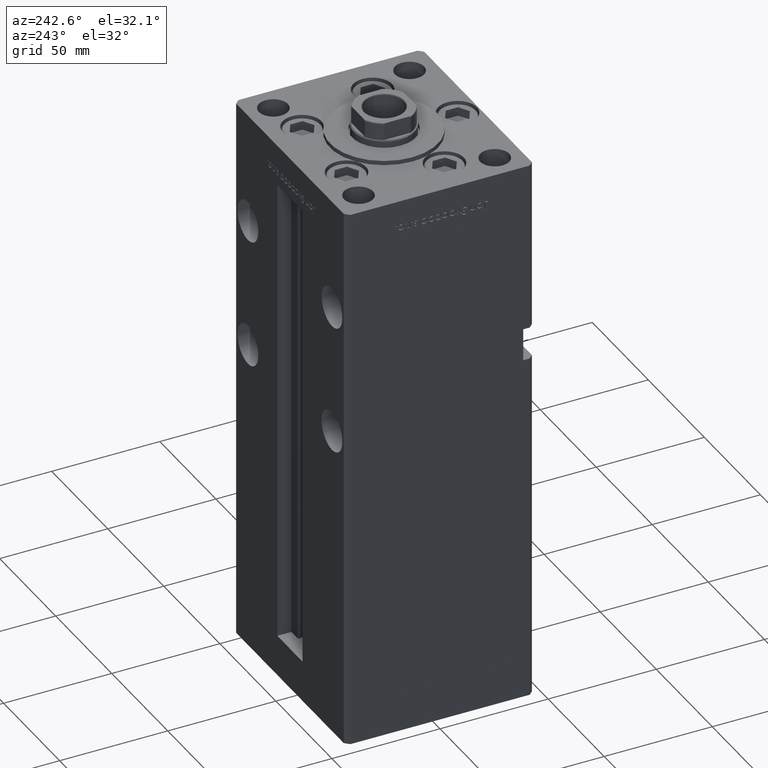
[diagram: clean part render]
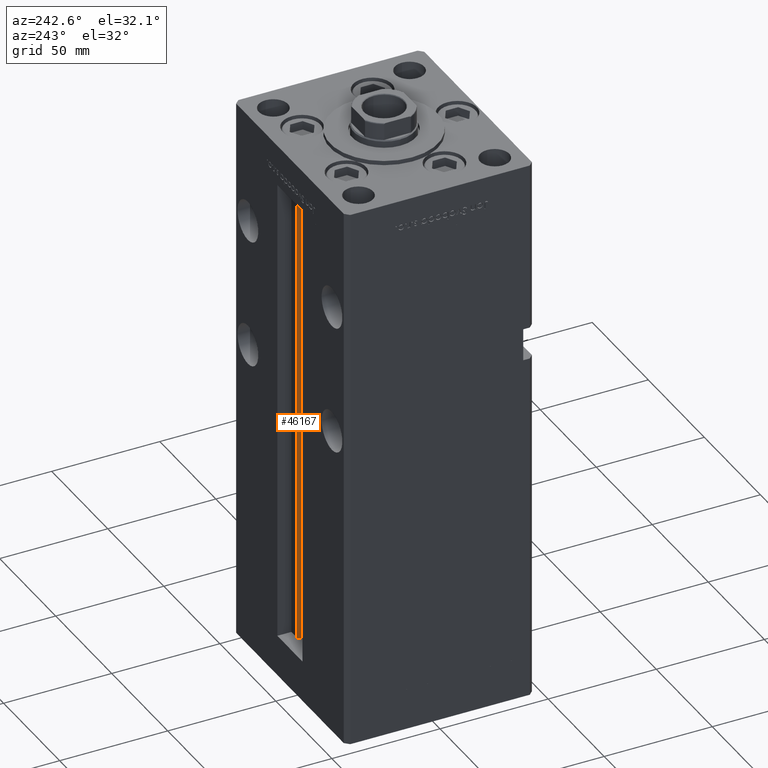
[diagram: same view with one face highlighted and labeled with its STEP entity id]
A machine part, auxiliary view. The second image highlights one B-rep face of the part: STEP entity #46167.
In plain terms, the highlighted cylindrical surface (edge-blend (fillet) strip) has radius 0.9333 mm, axis along (0, 0, 1).
Its self-contained STEP definition (entity closure, byte-faithful):
#406 = CARTESIAN_POINT ( 'NONE',  ( 6.183333333333996151, 36.06666666666599497, 218.5000000000000000 ) ) ;
#5248 = ORIENTED_EDGE ( 'NONE', *, *, #34965, .T. ) ;
#5437 = DIRECTION ( 'NONE',  ( -0.000000000000000000, -0.000000000000000000, 1.000000000000000000 ) ) ;
#10137 = ORIENTED_EDGE ( 'NONE', *, *, #10292, .T. ) ;
#10292 = EDGE_CURVE ( 'NONE', #39061, #16890, #41466, .T. ) ;
#11598 = VECTOR ( 'NONE', #34369, 1000.000000000000000 ) ;
#13605 = CARTESIAN_POINT ( 'NONE',  ( 6.183333333333996151, 36.06666666666599497, 0.000000000000000000 ) ) ;
#15328 = DIRECTION ( 'NONE',  ( -0.000000000000000000, -0.000000000000000000, 1.000000000000000000 ) ) ;
#15872 = DIRECTION ( 'NONE',  ( 1.000000000000000000, 0.000000000000000000, 0.000000000000000000 ) ) ;
#16890 = VERTEX_POINT ( 'NONE', #45912 ) ;
#17955 = CARTESIAN_POINT ( 'NONE',  ( 6.183333333333996151, 37.00000000000000000, 0.000000000000000000 ) ) ;
#18171 = DIRECTION ( 'NONE',  ( 1.000000000000000000, 0.000000000000000000, 0.000000000000000000 ) ) ;
#19817 = CIRCLE ( 'NONE', #30976, 0.9333333333339999260 ) ;
#20288 = VERTEX_POINT ( 'NONE', #51937 ) ;
#21957 = ORIENTED_EDGE ( 'NONE', *, *, #47329, .F. ) ;
#22100 = CARTESIAN_POINT ( 'NONE',  ( 5.375042956467944499, 35.59999999999899245, 0.000000000000000000 ) ) ;
#22128 = VERTEX_POINT ( 'NONE', #28055 ) ;
#23945 = CARTESIAN_POINT ( 'NONE',  ( 6.183333333333996151, 36.06666666666599497, 0.000000000000000000 ) ) ;
#25445 = DIRECTION ( 'NONE',  ( -0.000000000000000000, -0.000000000000000000, -1.000000000000000000 ) ) ;
#27892 = ORIENTED_EDGE ( 'NONE', *, *, #31076, .F. ) ;
#27905 = CIRCLE ( 'NONE', #33891, 0.9333333333339999260 ) ;
#28055 = CARTESIAN_POINT ( 'NONE',  ( 6.183333333333996151, 37.00000000000000000, 218.5000000000000000 ) ) ;
#30976 = AXIS2_PLACEMENT_3D ( 'NONE', #13605, #25445, #18171 ) ;
#31076 = EDGE_CURVE ( 'NONE', #20288, #22128, #34111, .T. ) ;
#33214 = DIRECTION ( 'NONE',  ( 0.000000000000000000, 0.000000000000000000, -1.000000000000000000 ) ) ;
#33891 = AXIS2_PLACEMENT_3D ( 'NONE', #406, #33214, #46089 ) ;
#34111 = LINE ( 'NONE', #17955, #11598 ) ;
#34275 = AXIS2_PLACEMENT_3D ( 'NONE', #23945, #15328, #15872 ) ;
#34369 = DIRECTION ( 'NONE',  ( -0.000000000000000000, -0.000000000000000000, 1.000000000000000000 ) ) ;
#34965 = EDGE_CURVE ( 'NONE', #16890, #22128, #27905, .T. ) ;
#35303 = EDGE_LOOP ( 'NONE', ( #27892, #21957, #10137, #5248 ) ) ;
#35789 = FACE_OUTER_BOUND ( 'NONE', #35303, .T. ) ;
#39061 = VERTEX_POINT ( 'NONE', #42613 ) ;
#40347 = CYLINDRICAL_SURFACE ( 'NONE', #34275, 0.9333333333339999260 ) ;
#41466 = LINE ( 'NONE', #22100, #49273 ) ;
#42613 = CARTESIAN_POINT ( 'NONE',  ( 5.375042956467944499, 35.59999999999899245, 0.000000000000000000 ) ) ;
#45912 = CARTESIAN_POINT ( 'NONE',  ( 5.375042956467946276, 35.59999999999899245, 218.5000000000000000 ) ) ;
#46089 = DIRECTION ( 'NONE',  ( 1.000000000000000000, 0.000000000000000000, 0.000000000000000000 ) ) ;
#46167 = ADVANCED_FACE ( 'NONE', ( #35789 ), #40347, .T. ) ;
#47329 = EDGE_CURVE ( 'NONE', #39061, #20288, #19817, .T. ) ;
#49273 = VECTOR ( 'NONE', #5437, 1000.000000000000000 ) ;
#51937 = CARTESIAN_POINT ( 'NONE',  ( 6.183333333333996151, 37.00000000000000000, 0.000000000000000000 ) ) ;